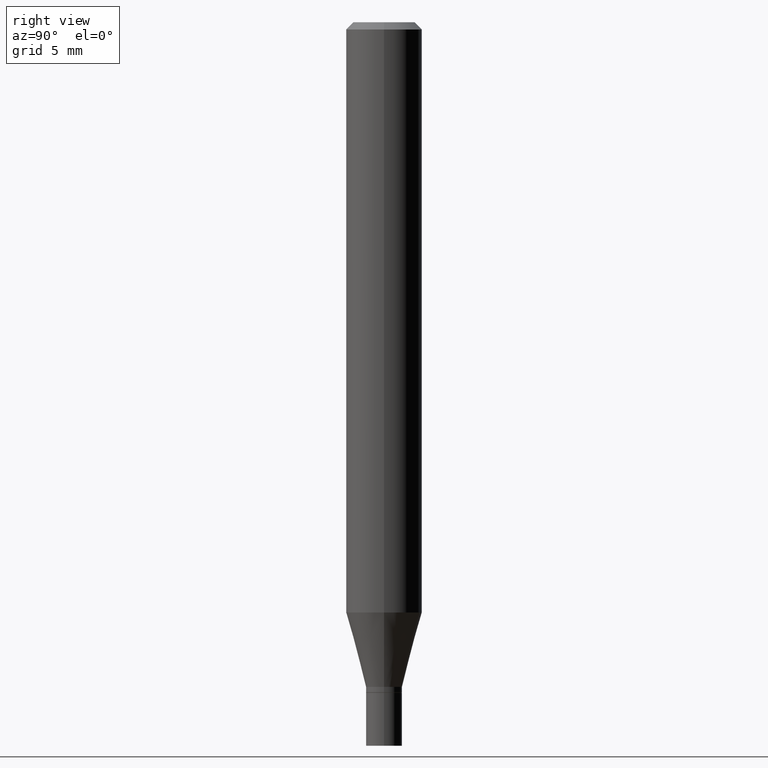
[diagram: clean part render]
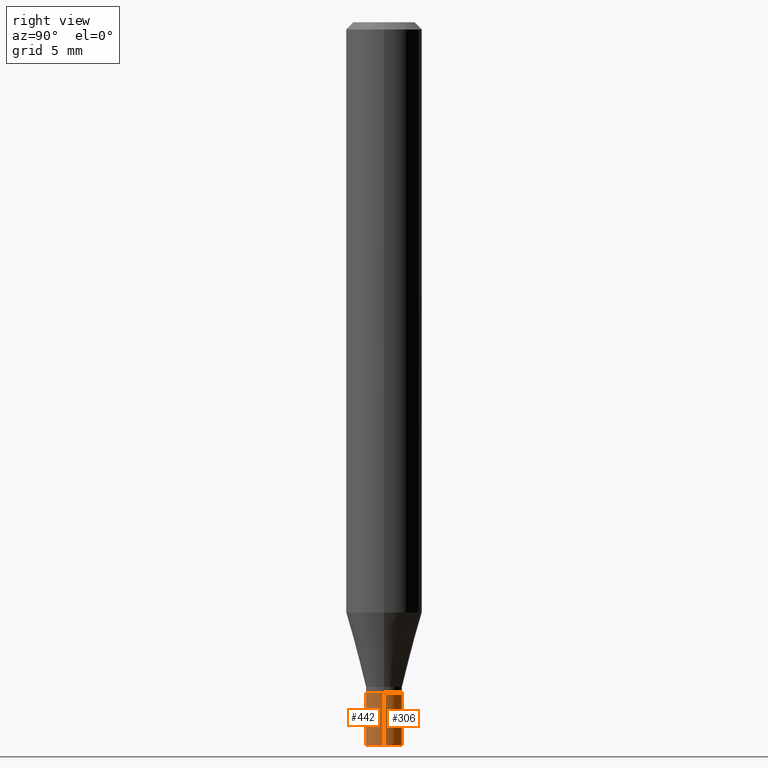
[diagram: same view with one multi-face feature highlighted, each face labeled with its STEP entity id]
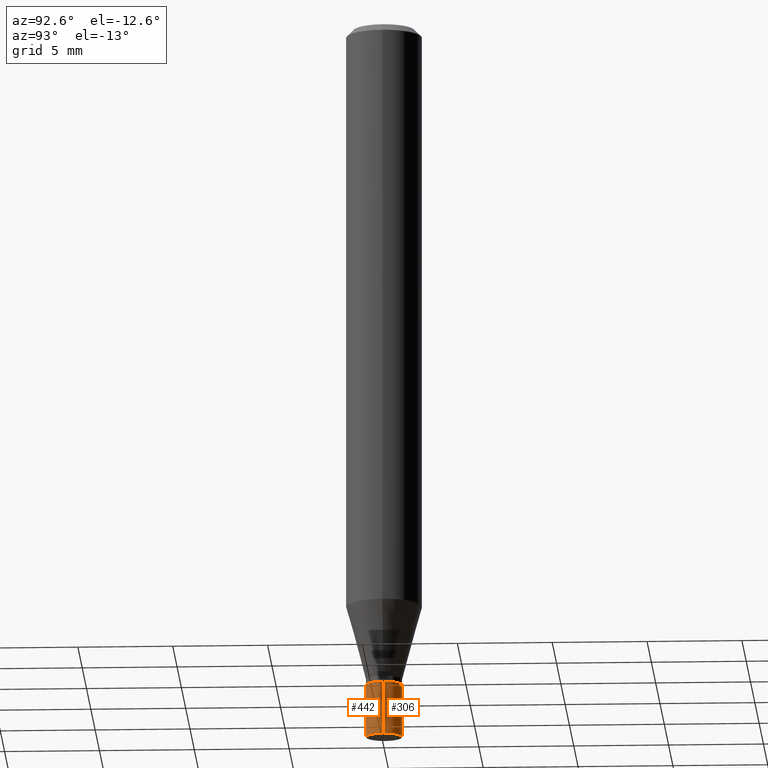
[diagram: same view with one multi-face feature highlighted, each face labeled with its STEP entity id]
A machine part, right view. The highlighted faces form ONE feature: a constant-radius fillet chain: 2 tangent blend faces with common blend radius 0.95 mm. The faces share edges in the B-rep.
A second angle (auxiliary view) of the same feature is appended — it is thin or edge-on in the first view.
Their STEP definitions:
[1] entity #306 (Cylinder):
#2 = FACE_OUTER_BOUND ( 'NONE', #323, .T. ) ;
#5 = DIRECTION ( 'NONE',  ( 1.000000000000000000, -6.982962677686274599E-15, 0.000000000000000000 ) ) ;
#7 = EDGE_CURVE ( 'NONE', #331, #12, #413, .T. ) ;
#12 = VERTEX_POINT ( 'NONE', #421 ) ;
#20 = AXIS2_PLACEMENT_3D ( 'NONE', #341, #203, #5 ) ;
#34 = EDGE_CURVE ( 'NONE', #181, #12, #115, .T. ) ;
#38 = CYLINDRICAL_SURFACE ( 'NONE', #183, 0.03740000000000000269 ) ;
#48 = ORIENTED_EDGE ( 'NONE', *, *, #227, .T. ) ;
#62 = DIRECTION ( 'NONE',  ( -2.445468806185136597E-29, 3.491481338843145583E-15, 1.000000000000000000 ) ) ;
#63 = LINE ( 'NONE', #122, #168 ) ;
#112 = AXIS2_PLACEMENT_3D ( 'NONE', #379, #62, #312 ) ;
#115 = LINE ( 'NONE', #119, #287 ) ;
#119 = CARTESIAN_POINT ( 'NONE',  ( -0.03740000000000000269, 2.657429831742774886E-16, -1.839681723755335040E-30 ) ) ;
#122 = CARTESIAN_POINT ( 'NONE',  ( 0.03740000000000000269, -2.611628041454664002E-16, 1.823690114147680082E-30 ) ) ;
#145 = VERTEX_POINT ( 'NONE', #230 ) ;
#165 = CARTESIAN_POINT ( 'NONE',  ( 0.000000000000000000, 0.000000000000000000, 0.000000000000000000 ) ) ;
#166 = DIRECTION ( 'NONE',  ( -2.445468806185136597E-29, 3.491481338843145583E-15, 1.000000000000000000 ) ) ;
#168 = VECTOR ( 'NONE', #340, 39.37007874015748143 ) ;
#180 = EDGE_CURVE ( 'NONE', #145, #331, #63, .T. ) ;
#181 = VERTEX_POINT ( 'NONE', #412 ) ;
#183 = AXIS2_PLACEMENT_3D ( 'NONE', #165, #166, #354 ) ;
#203 = DIRECTION ( 'NONE',  ( -2.445468806185136597E-29, 3.491481338843145583E-15, 1.000000000000000000 ) ) ;
#225 = CIRCLE ( 'NONE', #112, 0.03740000000000000269 ) ;
#227 = EDGE_CURVE ( 'NONE', #145, #181, #225, .T. ) ;
#230 = CARTESIAN_POINT ( 'NONE',  ( 0.03740000000000000269, -5.498384812410185366E-15, -1.500000000000000222 ) ) ;
#284 = ORIENTED_EDGE ( 'NONE', *, *, #7, .F. ) ;
#287 = VECTOR ( 'NONE', #438, 39.37007874015748143 ) ;
#306 = ADVANCED_FACE ( 'NONE', ( #2 ), #38, .T. ) ;
#312 = DIRECTION ( 'NONE',  ( 1.000000000000000000, -6.982962677686274599E-15, 0.000000000000000000 ) ) ;
#323 = EDGE_LOOP ( 'NONE', ( #48, #399, #284, #355 ) ) ;
#331 = VERTEX_POINT ( 'NONE', #427 ) ;
#340 = DIRECTION ( 'NONE',  ( -2.445468806185136877E-29, 3.491481338843145188E-15, 1.000000000000000000 ) ) ;
#341 = CARTESIAN_POINT ( 'NONE',  ( 3.398712546836102570E-29, -4.852460764724203802E-15, -1.389799999999999924 ) ) ;
#354 = DIRECTION ( 'NONE',  ( 1.000000000000000000, -6.982962677686266711E-15, 4.876176775795935793E-29 ) ) ;
#355 = ORIENTED_EDGE ( 'NONE', *, *, #180, .F. ) ;
#379 = CARTESIAN_POINT ( 'NONE',  ( 3.668203209277704895E-29, -5.237222008264718177E-15, -1.500000000000000222 ) ) ;
#399 = ORIENTED_EDGE ( 'NONE', *, *, #34, .T. ) ;
#412 = CARTESIAN_POINT ( 'NONE',  ( -0.03740000000000000269, -4.779098403320183994E-15, -1.500000000000000222 ) ) ;
#413 = CIRCLE ( 'NONE', #20, 0.03740000000000000269 ) ;
#421 = CARTESIAN_POINT ( 'NONE',  ( -0.03740000000000000269, -4.779098403320183994E-15, -1.389799999999999924 ) ) ;
#427 = CARTESIAN_POINT ( 'NONE',  ( 0.03740000000000000269, -5.113623568869670202E-15, -1.389799999999999924 ) ) ;
#438 = DIRECTION ( 'NONE',  ( -2.445468806185136877E-29, 3.491481338843145188E-15, 1.000000000000000000 ) ) ;
[2] entity #442 (Cylinder):
#12 = VERTEX_POINT ( 'NONE', #421 ) ;
#34 = EDGE_CURVE ( 'NONE', #181, #12, #115, .T. ) ;
#44 = EDGE_CURVE ( 'NONE', #12, #331, #327, .T. ) ;
#49 = CYLINDRICAL_SURFACE ( 'NONE', #184, 0.03740000000000000269 ) ;
#55 = ORIENTED_EDGE ( 'NONE', *, *, #34, .F. ) ;
#56 = ORIENTED_EDGE ( 'NONE', *, *, #180, .T. ) ;
#63 = LINE ( 'NONE', #122, #168 ) ;
#94 = CARTESIAN_POINT ( 'NONE',  ( 3.668203209277704895E-29, -5.237222008264718177E-15, -1.500000000000000222 ) ) ;
#115 = LINE ( 'NONE', #119, #287 ) ;
#119 = CARTESIAN_POINT ( 'NONE',  ( -0.03740000000000000269, 2.657429831742774886E-16, -1.839681723755335040E-30 ) ) ;
#122 = CARTESIAN_POINT ( 'NONE',  ( 0.03740000000000000269, -2.611628041454664002E-16, 1.823690114147680082E-30 ) ) ;
#145 = VERTEX_POINT ( 'NONE', #230 ) ;
#168 = VECTOR ( 'NONE', #340, 39.37007874015748143 ) ;
#178 = DIRECTION ( 'NONE',  ( -2.445468806185136597E-29, 3.491481338843145583E-15, 1.000000000000000000 ) ) ;
#180 = EDGE_CURVE ( 'NONE', #145, #331, #63, .T. ) ;
#181 = VERTEX_POINT ( 'NONE', #412 ) ;
#184 = AXIS2_PLACEMENT_3D ( 'NONE', #216, #178, #290 ) ;
#200 = CIRCLE ( 'NONE', #208, 0.03740000000000000269 ) ;
#208 = AXIS2_PLACEMENT_3D ( 'NONE', #94, #233, #345 ) ;
#215 = EDGE_CURVE ( 'NONE', #181, #145, #200, .T. ) ;
#216 = CARTESIAN_POINT ( 'NONE',  ( 0.000000000000000000, 0.000000000000000000, 0.000000000000000000 ) ) ;
#230 = CARTESIAN_POINT ( 'NONE',  ( 0.03740000000000000269, -5.498384812410185366E-15, -1.500000000000000222 ) ) ;
#233 = DIRECTION ( 'NONE',  ( -2.445468806185136597E-29, 3.491481338843145583E-15, 1.000000000000000000 ) ) ;
#256 = CARTESIAN_POINT ( 'NONE',  ( 3.398712546836102570E-29, -4.852460764724203802E-15, -1.389799999999999924 ) ) ;
#271 = AXIS2_PLACEMENT_3D ( 'NONE', #256, #409, #320 ) ;
#287 = VECTOR ( 'NONE', #438, 39.37007874015748143 ) ;
#290 = DIRECTION ( 'NONE',  ( 1.000000000000000000, -6.982962677686266711E-15, 4.876176775795935793E-29 ) ) ;
#291 = FACE_OUTER_BOUND ( 'NONE', #417, .T. ) ;
#296 = ORIENTED_EDGE ( 'NONE', *, *, #215, .T. ) ;
#308 = ORIENTED_EDGE ( 'NONE', *, *, #44, .F. ) ;
#320 = DIRECTION ( 'NONE',  ( 1.000000000000000000, -6.982962677686274599E-15, 0.000000000000000000 ) ) ;
#327 = CIRCLE ( 'NONE', #271, 0.03740000000000000269 ) ;
#331 = VERTEX_POINT ( 'NONE', #427 ) ;
#340 = DIRECTION ( 'NONE',  ( -2.445468806185136877E-29, 3.491481338843145188E-15, 1.000000000000000000 ) ) ;
#345 = DIRECTION ( 'NONE',  ( 1.000000000000000000, -6.982962677686274599E-15, 0.000000000000000000 ) ) ;
#409 = DIRECTION ( 'NONE',  ( -2.445468806185136597E-29, 3.491481338843145583E-15, 1.000000000000000000 ) ) ;
#412 = CARTESIAN_POINT ( 'NONE',  ( -0.03740000000000000269, -4.779098403320183994E-15, -1.500000000000000222 ) ) ;
#417 = EDGE_LOOP ( 'NONE', ( #55, #296, #56, #308 ) ) ;
#421 = CARTESIAN_POINT ( 'NONE',  ( -0.03740000000000000269, -4.779098403320183994E-15, -1.389799999999999924 ) ) ;
#427 = CARTESIAN_POINT ( 'NONE',  ( 0.03740000000000000269, -5.113623568869670202E-15, -1.389799999999999924 ) ) ;
#438 = DIRECTION ( 'NONE',  ( -2.445468806185136877E-29, 3.491481338843145188E-15, 1.000000000000000000 ) ) ;
#442 = ADVANCED_FACE ( 'NONE', ( #291 ), #49, .T. ) ;